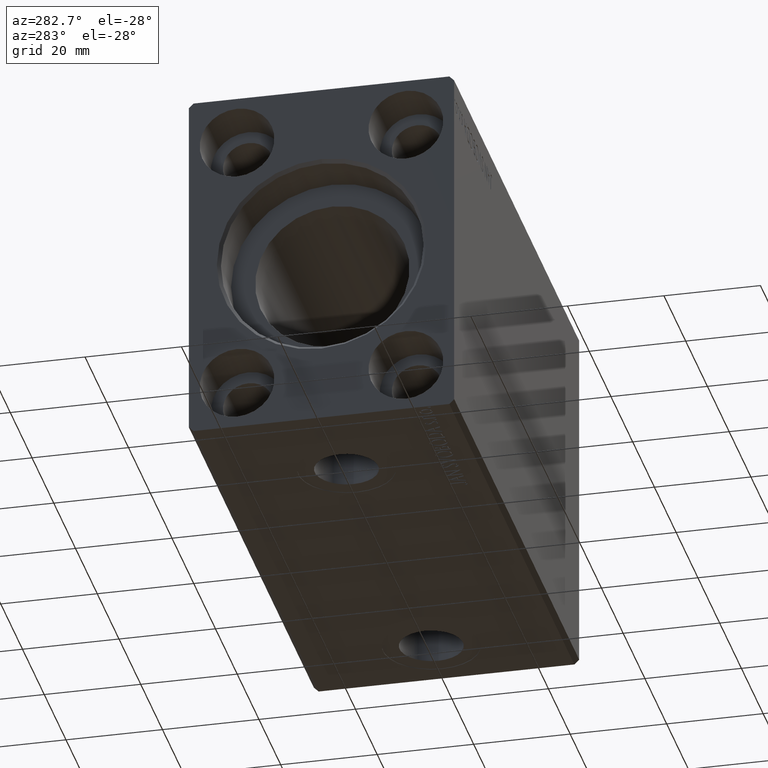
[diagram: clean part render]
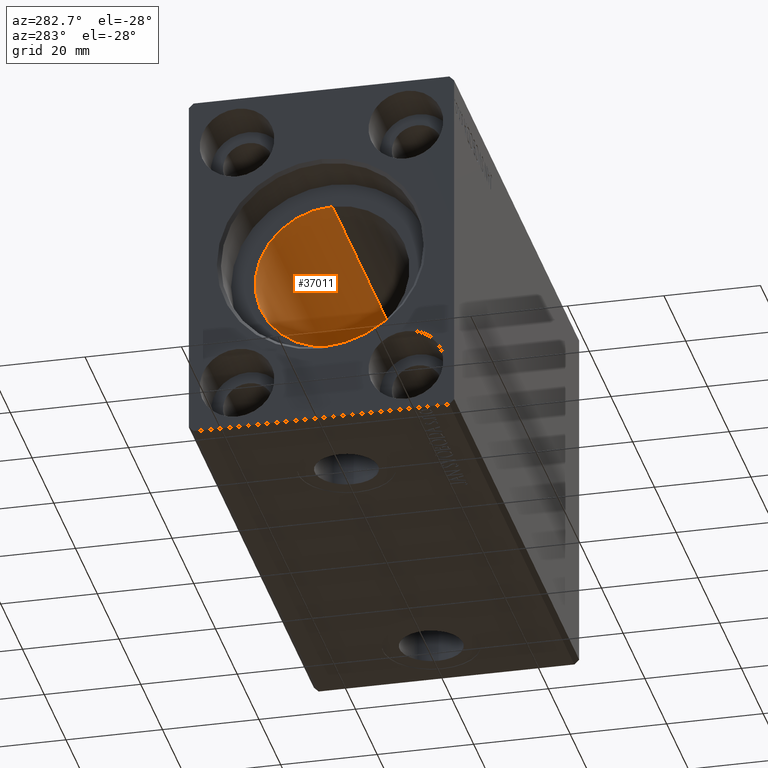
[diagram: same view with one face highlighted and labeled with its STEP entity id]
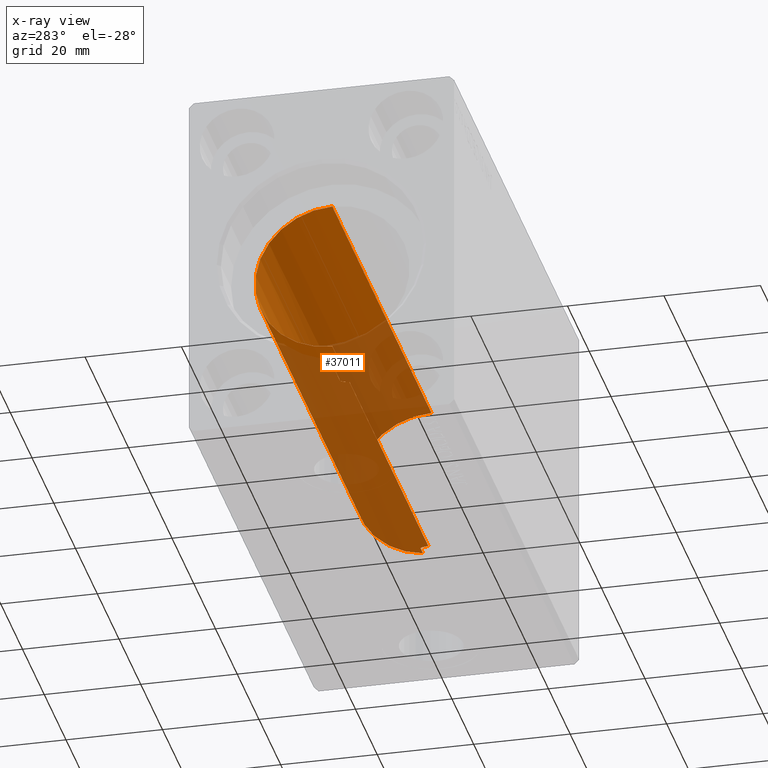
[diagram: x-ray of the same camera — body ghosted, the highlighted face saturated]
A machine part, auxiliary view. The second image highlights one B-rep face of the part: STEP entity #37011.
The next image is the same camera in x-ray: the body ghosted, the highlighted face saturated — about 56% of this face is hidden behind the body in this view.
In plain terms, the highlighted cylindrical surface (partial cylindrical patch) has radius 16 mm, axis along (-1, -0, -0).
Its self-contained STEP definition (entity closure, byte-faithful):
#40 = VERTEX_POINT ( 'NONE', #39613 ) ;
#1442 = CARTESIAN_POINT ( 'NONE',  ( 20.80302300273467964, 1.662044306363391177, -15.91393043707981292 ) ) ;
#2249 = VERTEX_POINT ( 'NONE', #10573 ) ;
#2493 = VECTOR ( 'NONE', #25830, 1000.000000000000000 ) ;
#2981 = CARTESIAN_POINT ( 'NONE',  ( 20.25000000000000000, 1.952197298178576320E-15, -16.00000000000000000 ) ) ;
#3700 = CARTESIAN_POINT ( 'NONE',  ( 101.2000000000000028, 0.000000000000000000, 0.000000000000000000 ) ) ;
#3848 = DIRECTION ( 'NONE',  ( -1.000000000000000000, -0.000000000000000000, -0.000000000000000000 ) ) ;
#4564 = ORIENTED_EDGE ( 'NONE', *, *, #21855, .T. ) ;
#4692 = DIRECTION ( 'NONE',  ( -1.000000000000000000, 0.000000000000000000, 0.000000000000000000 ) ) ;
#4884 = CARTESIAN_POINT ( 'NONE',  ( 20.70828422114123057, 1.528580496451064752, -15.92742812959714982 ) ) ;
#4904 = CARTESIAN_POINT ( 'NONE',  ( 101.2000000000000028, 0.000000000000000000, 0.000000000000000000 ) ) ;
#4984 = CARTESIAN_POINT ( 'NONE',  ( 101.2000000000000028, 1.786057109949259036, -15.89999999999998970 ) ) ;
#5150 = DIRECTION ( 'NONE',  ( 0.000000000000000000, 0.000000000000000000, 1.000000000000000000 ) ) ;
#5182 = ORIENTED_EDGE ( 'NONE', *, *, #27145, .F. ) ;
#6106 = ORIENTED_EDGE ( 'NONE', *, *, #31702, .F. ) ;
#6571 = VECTOR ( 'NONE', #3848, 1000.000000000000000 ) ;
#7083 = ORIENTED_EDGE ( 'NONE', *, *, #32681, .T. ) ;
#7293 = VERTEX_POINT ( 'NONE', #37027 ) ;
#7771 = DIRECTION ( 'NONE',  ( -1.000000000000000000, -0.000000000000000000, -0.000000000000000000 ) ) ;
#7989 = LINE ( 'NONE', #4984, #40625 ) ;
#9013 = LINE ( 'NONE', #15913, #2493 ) ;
#9265 = CARTESIAN_POINT ( 'NONE',  ( 98.32103554224153186, 0.6416550435731656066, -15.98791951246751886 ) ) ;
#9311 = DIRECTION ( 'NONE',  ( -1.000000000000000000, -0.000000000000000000, -0.000000000000000000 ) ) ;
#9731 = DIRECTION ( 'NONE',  ( -1.000000000000000000, -0.000000000000000000, -0.000000000000000000 ) ) ;
#10258 = CARTESIAN_POINT ( 'NONE',  ( 20.26435230214253380, 0.3237335850403343929, -15.99751506009603652 ) ) ;
#10573 = CARTESIAN_POINT ( 'NONE',  ( 98.90894763336741846, 1.786057109949259036, -15.89999999999998970 ) ) ;
#11116 = CARTESIAN_POINT ( 'NONE',  ( 20.36400824168861234, 0.8002234119869107154, -15.98070334047259777 ) ) ;
#11265 = CARTESIAN_POINT ( 'NONE',  ( 25.75000000000000355, 0.1629275007895856497, -16.00000000000000000 ) ) ;
#11362 = EDGE_CURVE ( 'NONE', #22614, #2249, #23497, .T. ) ;
#11892 = AXIS2_PLACEMENT_3D ( 'NONE', #4904, #4692, #31191 ) ;
#11915 = EDGE_CURVE ( 'NONE', #33808, #40278, #33576, .T. ) ;
#12278 = CARTESIAN_POINT ( 'NONE',  ( 98.36400824168860879, 0.8002234119869107154, -15.98070334047259777 ) ) ;
#12750 = LINE ( 'NONE', #38649, #35507 ) ;
#13490 = VERTEX_POINT ( 'NONE', #2981 ) ;
#13620 = VECTOR ( 'NONE', #7771, 1000.000000000000000 ) ;
#14070 = CARTESIAN_POINT ( 'NONE',  ( 25.63617786229477957, 0.7997846173174859574, -15.98073294566550473 ) ) ;
#14533 = CARTESIAN_POINT ( 'NONE',  ( 25.75000000000000000, 1.966672454835068530E-15, -16.00000000000000000 ) ) ;
#15311 = CARTESIAN_POINT ( 'NONE',  ( 98.80302300273469029, 1.662044306363389179, -15.91393043707981647 ) ) ;
#15440 = VERTEX_POINT ( 'NONE', #33452 ) ;
#15510 = CARTESIAN_POINT ( 'NONE',  ( 20.90894763336742912, 1.786057109949259036, -15.89999999999998970 ) ) ;
#15913 = CARTESIAN_POINT ( 'NONE',  ( 101.2000000000000028, 1.959434878635765131E-15, -16.00000000000000000 ) ) ;
#16523 = EDGE_CURVE ( 'NONE', #33808, #33927, #7989, .T. ) ;
#17151 = EDGE_CURVE ( 'NONE', #13490, #33927, #23416, .T. ) ;
#18496 = DIRECTION ( 'NONE',  ( -1.000000000000000000, 0.000000000000000000, 0.000000000000000000 ) ) ;
#19179 = CARTESIAN_POINT ( 'NONE',  ( 98.47635814035336921, 1.104555034037125516, -15.96255602784426486 ) ) ;
#19390 = CARTESIAN_POINT ( 'NONE',  ( 98.90894763336741846, 1.786057109949259036, -15.89999999999998970 ) ) ;
#19851 = DIRECTION ( 'NONE',  ( 0.000000000000000000, 0.000000000000000000, 1.000000000000000000 ) ) ;
#20118 = EDGE_LOOP ( 'NONE', ( #6106, #25295, #38370, #5182, #7083, #4564, #34026, #22600, #36778, #40052 ) ) ;
#20607 = CARTESIAN_POINT ( 'NONE',  ( 20.47635814035335855, 1.104555034037125516, -15.96255602784426841 ) ) ;
#21075 = LINE ( 'NONE', #24110, #6571 ) ;
#21855 = EDGE_CURVE ( 'NONE', #7293, #15440, #29051, .T. ) ;
#22196 = CARTESIAN_POINT ( 'NONE',  ( 98.70828422114124123, 1.528580496451063198, -15.92742812959714982 ) ) ;
#22405 = CARTESIAN_POINT ( 'NONE',  ( 98.54529199024536013, 1.250171241089528706, -15.95169574138015633 ) ) ;
#22600 = ORIENTED_EDGE ( 'NONE', *, *, #17151, .T. ) ;
#22614 = VERTEX_POINT ( 'NONE', #28110 ) ;
#22819 = AXIS2_PLACEMENT_3D ( 'NONE', #35314, #18496, #5150 ) ;
#22879 = CYLINDRICAL_SURFACE ( 'NONE', #28030, 16.00000000000000000 ) ;
#23299 = FACE_OUTER_BOUND ( 'NONE', #20118, .T. ) ;
#23416 = B_SPLINE_CURVE_WITH_KNOTS ( 'NONE', 3,
 ( #36567, #39804, #10258, #40231, #11116, #20607, #37645, #4884, #1442, #33776 ),
 .UNSPECIFIED., .F., .F.,
 ( 4, 2, 2, 2, 4 ),
 ( 0.001937515079377276567, 0.002421672136522722528, 0.002905829193668168706, 0.003389986250813614450, 0.003874143307959060194 ),
 .UNSPECIFIED. ) ;
#23497 = LINE ( 'NONE', #37306, #13620 ) ;
#23774 = VERTEX_POINT ( 'NONE', #36279 ) ;
#24110 = CARTESIAN_POINT ( 'NONE',  ( 101.2000000000000028, 1.959434878635765131E-15, -16.00000000000000000 ) ) ;
#25224 = CARTESIAN_POINT ( 'NONE',  ( 98.25000000000000000, 1.952197382189107282E-15, -16.00000000000000000 ) ) ;
#25295 = ORIENTED_EDGE ( 'NONE', *, *, #25973, .T. ) ;
#25830 = DIRECTION ( 'NONE',  ( -1.000000000000000000, -0.000000000000000000, -0.000000000000000000 ) ) ;
#25973 = EDGE_CURVE ( 'NONE', #23774, #2249, #28632, .T. ) ;
#27021 = CARTESIAN_POINT ( 'NONE',  ( 25.75000000000000000, 1.966672454835068530E-15, -16.00000000000000000 ) ) ;
#27145 = EDGE_CURVE ( 'NONE', #40, #22614, #30501, .T. ) ;
#27659 = CARTESIAN_POINT ( 'NONE',  ( 25.67843830749630740, 0.6438297815899759469, -15.98783114994251697 ) ) ;
#28030 = AXIS2_PLACEMENT_3D ( 'NONE', #3700, #9731, #19851 ) ;
#28110 = CARTESIAN_POINT ( 'NONE',  ( 101.2000000000000028, 1.786057109949259036, -15.89999999999998970 ) ) ;
#28632 = B_SPLINE_CURVE_WITH_KNOTS ( 'NONE', 3,
 ( #25224, #38381, #28672, #9265, #12278, #19179, #22405, #22196, #15311, #19390 ),
 .UNSPECIFIED., .F., .F.,
 ( 4, 2, 2, 2, 4 ),
 ( 0.001937515079377273965, 0.002421672136522718625, 0.002905829193668163068, 0.003389986250813607511, 0.003874143307959051954 ),
 .UNSPECIFIED. ) ;
#28672 = CARTESIAN_POINT ( 'NONE',  ( 98.26435230214251249, 0.3237335850403359472, -15.99751506009604007 ) ) ;
#29051 = CIRCLE ( 'NONE', #22819, 16.00000000000000000 ) ;
#30472 = CARTESIAN_POINT ( 'NONE',  ( 25.46669777805105639, 1.258673386848676135, -15.95335904956524864 ) ) ;
#30501 = CIRCLE ( 'NONE', #11892, 16.00000000000000000 ) ;
#30902 = CARTESIAN_POINT ( 'NONE',  ( 25.30299467954352011, 1.537922561208759253, -15.92787311163533914 ) ) ;
#31191 = DIRECTION ( 'NONE',  ( 0.000000000000000000, 0.000000000000000000, 1.000000000000000000 ) ) ;
#31702 = EDGE_CURVE ( 'NONE', #23774, #40278, #21075, .T. ) ;
#32681 = EDGE_CURVE ( 'NONE', #40, #7293, #12750, .T. ) ;
#33452 = CARTESIAN_POINT ( 'NONE',  ( 9.999999999999994671, 1.959434878635765131E-15, -16.00000000000000000 ) ) ;
#33576 = B_SPLINE_CURVE_WITH_KNOTS ( 'NONE', 3,
 ( #33922, #30902, #30472, #14070, #27659, #40810, #11265, #27021 ),
 .UNSPECIFIED., .F., .F.,
 ( 4, 2, 2, 4 ),
 ( 0.000000000000000000, 0.0009687575396886391509, 0.001453136309532957046, 0.001937515079377275266 ),
 .UNSPECIFIED. ) ;
#33776 = CARTESIAN_POINT ( 'NONE',  ( 20.90894763336742912, 1.786057109949259036, -15.89999999999998970 ) ) ;
#33808 = VERTEX_POINT ( 'NONE', #33886 ) ;
#33882 = DIRECTION ( 'NONE',  ( -1.000000000000000000, -0.000000000000000000, -0.000000000000000000 ) ) ;
#33886 = CARTESIAN_POINT ( 'NONE',  ( 25.09105236663257088, 1.786057109949259036, -15.89999999999998970 ) ) ;
#33922 = CARTESIAN_POINT ( 'NONE',  ( 25.09105236663257088, 1.786057109949259036, -15.89999999999998970 ) ) ;
#33927 = VERTEX_POINT ( 'NONE', #15510 ) ;
#34026 = ORIENTED_EDGE ( 'NONE', *, *, #34979, .F. ) ;
#34979 = EDGE_CURVE ( 'NONE', #13490, #15440, #9013, .T. ) ;
#35314 = CARTESIAN_POINT ( 'NONE',  ( 9.999999999999994671, 0.000000000000000000, 0.000000000000000000 ) ) ;
#35507 = VECTOR ( 'NONE', #9311, 1000.000000000000000 ) ;
#36279 = CARTESIAN_POINT ( 'NONE',  ( 98.25000000000000000, 1.952197382189107282E-15, -16.00000000000000000 ) ) ;
#36567 = CARTESIAN_POINT ( 'NONE',  ( 20.25000000000000000, 1.952197298178576320E-15, -16.00000000000000000 ) ) ;
#36778 = ORIENTED_EDGE ( 'NONE', *, *, #16523, .F. ) ;
#37011 = ADVANCED_FACE ( 'NONE', ( #23299 ), #22879, .F. ) ;
#37027 = CARTESIAN_POINT ( 'NONE',  ( 9.999999999999994671, 0.000000000000000000, 16.00000000000000000 ) ) ;
#37306 = CARTESIAN_POINT ( 'NONE',  ( 101.2000000000000028, 1.786057109949259036, -15.89999999999998970 ) ) ;
#37645 = CARTESIAN_POINT ( 'NONE',  ( 20.54529199024537789, 1.250171241089528928, -15.95169574138015278 ) ) ;
#38370 = ORIENTED_EDGE ( 'NONE', *, *, #11362, .F. ) ;
#38381 = CARTESIAN_POINT ( 'NONE',  ( 98.24999999999997158, 0.1628529246558471366, -15.99999999999999645 ) ) ;
#38649 = CARTESIAN_POINT ( 'NONE',  ( 101.2000000000000028, 0.000000000000000000, 16.00000000000000000 ) ) ;
#39613 = CARTESIAN_POINT ( 'NONE',  ( 101.2000000000000028, 0.000000000000000000, 16.00000000000000000 ) ) ;
#39804 = CARTESIAN_POINT ( 'NONE',  ( 20.25000000000000000, 0.1628529246558463039, -16.00000000000000000 ) ) ;
#40052 = ORIENTED_EDGE ( 'NONE', *, *, #11915, .T. ) ;
#40231 = CARTESIAN_POINT ( 'NONE',  ( 20.32103554224154607, 0.6416550435731651625, -15.98791951246752241 ) ) ;
#40278 = VERTEX_POINT ( 'NONE', #14533 ) ;
#40625 = VECTOR ( 'NONE', #33882, 1000.000000000000000 ) ;
#40810 = CARTESIAN_POINT ( 'NONE',  ( 25.73536268302067853, 0.3260974502564771282, -15.99746611559688780 ) ) ;